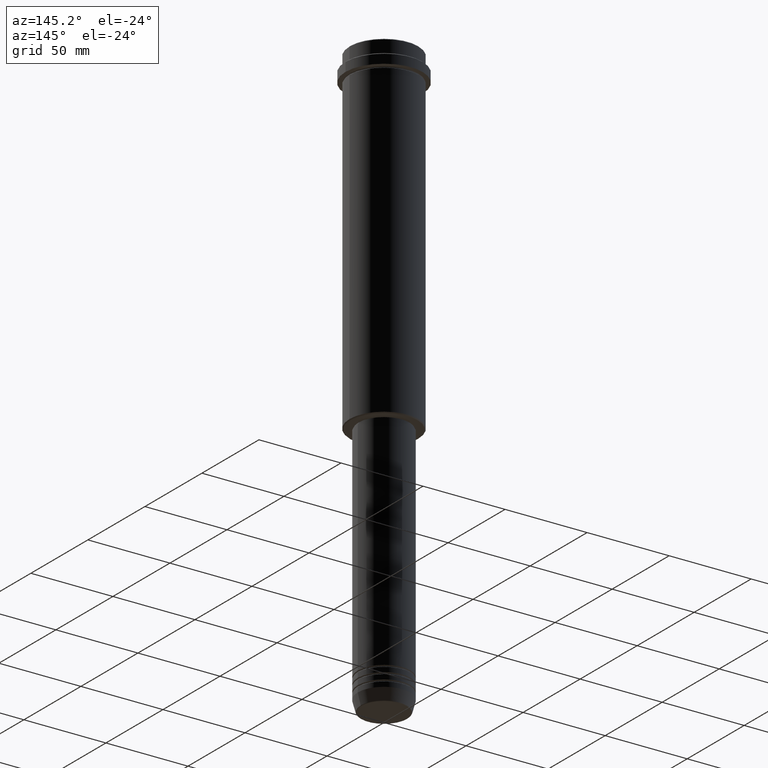
[diagram: clean part render]
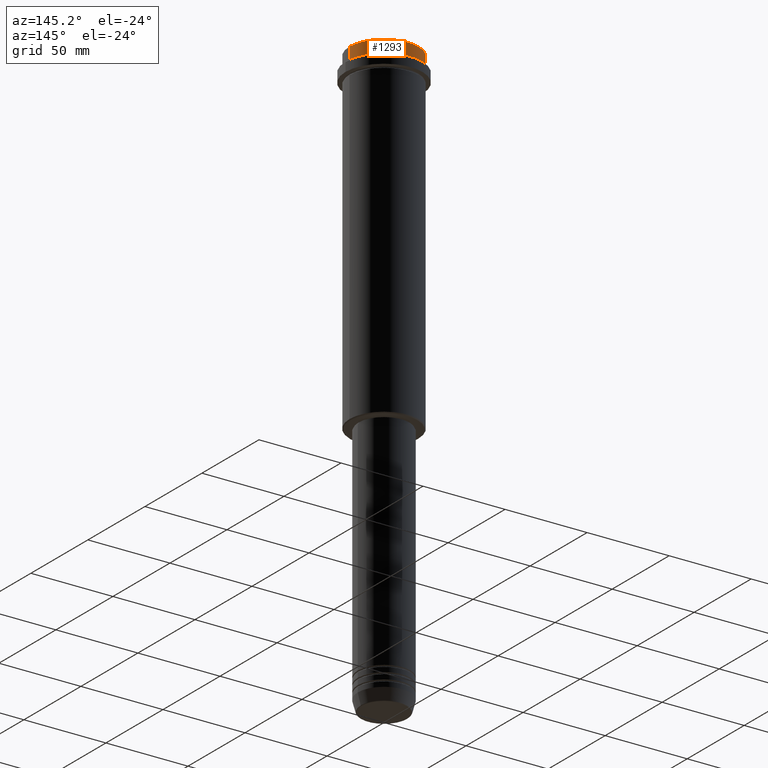
[diagram: same view with one face highlighted and labeled with its STEP entity id]
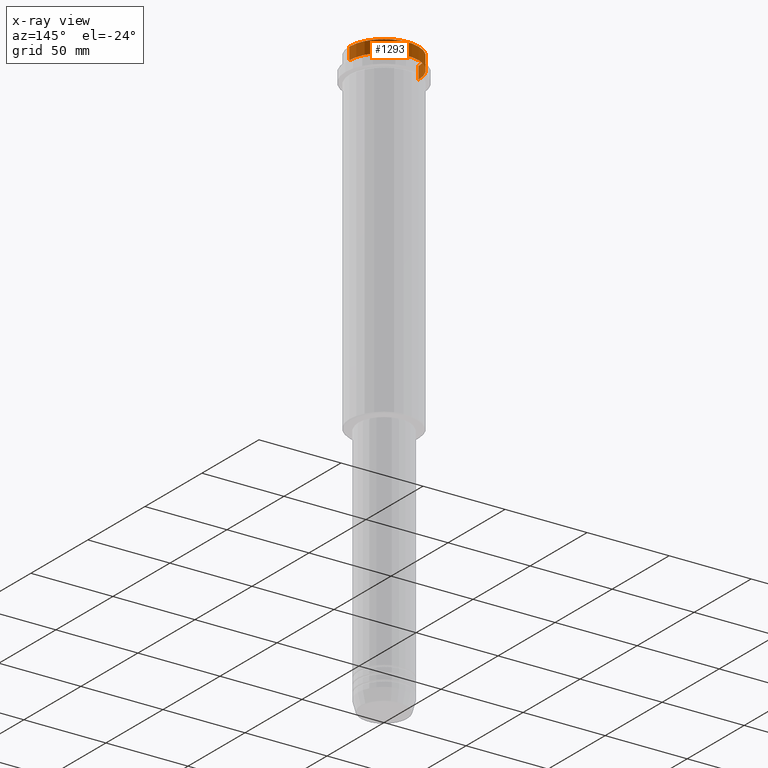
[diagram: x-ray of the same camera — body ghosted, the highlighted face saturated]
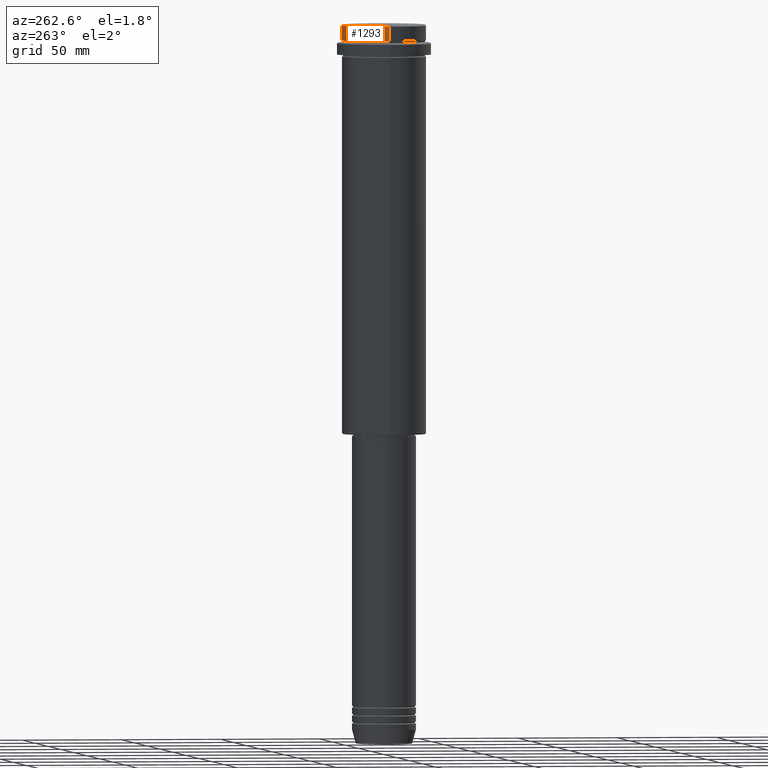
[diagram: same view with one face highlighted and labeled with its STEP entity id]
A machine part, auxiliary view. The second image highlights one B-rep face of the part: STEP entity #1293.
The next image is the same camera in x-ray: the body ghosted, the highlighted face saturated — about 0% of this face is hidden behind the body in this view.
A second angle (auxiliary view) of the same face is appended — the face is thin or edge-on in the first view.
In plain terms, the highlighted cylindrical surface (partial cylindrical patch) has radius 21 mm, axis along (-0, -0, 1).
Its self-contained STEP definition (entity closure, byte-faithful):
#34 = EDGE_CURVE ( 'NONE', #234, #1298, #96, .T. ) ;
#67 = CARTESIAN_POINT ( 'NONE',  ( -20.99999999999999645, 2.571758278209441267E-15, -0.4999999999999241163 ) ) ;
#81 = VECTOR ( 'NONE', #170, 1000.000000000000000 ) ;
#96 = LINE ( 'NONE', #1083, #1325 ) ;
#138 = LINE ( 'NONE', #362, #81 ) ;
#147 = DIRECTION ( 'NONE',  ( 1.000000000000000000, 0.000000000000000000, 0.000000000000000000 ) ) ;
#170 = DIRECTION ( 'NONE',  ( -0.000000000000000000, -0.000000000000000000, 1.000000000000000000 ) ) ;
#184 = VERTEX_POINT ( 'NONE', #67 ) ;
#221 = EDGE_CURVE ( 'NONE', #184, #1298, #803, .T. ) ;
#223 = EDGE_LOOP ( 'NONE', ( #1238, #1337, #500, #637 ) ) ;
#234 = VERTEX_POINT ( 'NONE', #1134 ) ;
#299 = FACE_OUTER_BOUND ( 'NONE', #223, .T. ) ;
#362 = CARTESIAN_POINT ( 'NONE',  ( -20.99999999999999645, 2.571758278209441267E-15, 0.000000000000000000 ) ) ;
#395 = DIRECTION ( 'NONE',  ( 0.000000000000000000, 0.000000000000000000, -1.000000000000000000 ) ) ;
#407 = CARTESIAN_POINT ( 'NONE',  ( 20.99999999999999645, 0.000000000000000000, -0.4999999999999241163 ) ) ;
#436 = AXIS2_PLACEMENT_3D ( 'NONE', #825, #395, #603 ) ;
#460 = CIRCLE ( 'NONE', #1356, 20.99999999999999645 ) ;
#500 = ORIENTED_EDGE ( 'NONE', *, *, #221, .T. ) ;
#603 = DIRECTION ( 'NONE',  ( 1.000000000000000000, 0.000000000000000000, 0.000000000000000000 ) ) ;
#637 = ORIENTED_EDGE ( 'NONE', *, *, #34, .F. ) ;
#693 = DIRECTION ( 'NONE',  ( -0.000000000000000000, -0.000000000000000000, 1.000000000000000000 ) ) ;
#753 = CARTESIAN_POINT ( 'NONE',  ( -20.99999999999999645, 2.571758278209441267E-15, -7.999999999999998224 ) ) ;
#803 = CIRCLE ( 'NONE', #436, 20.99999999999999645 ) ;
#821 = VERTEX_POINT ( 'NONE', #753 ) ;
#825 = CARTESIAN_POINT ( 'NONE',  ( 0.000000000000000000, 0.000000000000000000, -0.4999999999999241163 ) ) ;
#971 = CYLINDRICAL_SURFACE ( 'NONE', #1270, 20.99999999999999645 ) ;
#1051 = CARTESIAN_POINT ( 'NONE',  ( 0.000000000000000000, 0.000000000000000000, -7.999999999999998224 ) ) ;
#1057 = DIRECTION ( 'NONE',  ( 1.000000000000000000, 0.000000000000000000, 0.000000000000000000 ) ) ;
#1083 = CARTESIAN_POINT ( 'NONE',  ( 20.99999999999999645, 0.000000000000000000, 0.000000000000000000 ) ) ;
#1134 = CARTESIAN_POINT ( 'NONE',  ( 20.99999999999999645, 0.000000000000000000, -7.999999999999998224 ) ) ;
#1180 = DIRECTION ( 'NONE',  ( -0.000000000000000000, -0.000000000000000000, 1.000000000000000000 ) ) ;
#1203 = EDGE_CURVE ( 'NONE', #821, #184, #138, .T. ) ;
#1238 = ORIENTED_EDGE ( 'NONE', *, *, #1276, .T. ) ;
#1270 = AXIS2_PLACEMENT_3D ( 'NONE', #1378, #1180, #1057 ) ;
#1276 = EDGE_CURVE ( 'NONE', #234, #821, #460, .T. ) ;
#1293 = ADVANCED_FACE ( 'NONE', ( #299 ), #971, .T. ) ;
#1298 = VERTEX_POINT ( 'NONE', #407 ) ;
#1325 = VECTOR ( 'NONE', #1415, 1000.000000000000000 ) ;
#1337 = ORIENTED_EDGE ( 'NONE', *, *, #1203, .T. ) ;
#1356 = AXIS2_PLACEMENT_3D ( 'NONE', #1051, #693, #147 ) ;
#1378 = CARTESIAN_POINT ( 'NONE',  ( 0.000000000000000000, 0.000000000000000000, 0.000000000000000000 ) ) ;
#1415 = DIRECTION ( 'NONE',  ( -0.000000000000000000, -0.000000000000000000, 1.000000000000000000 ) ) ;